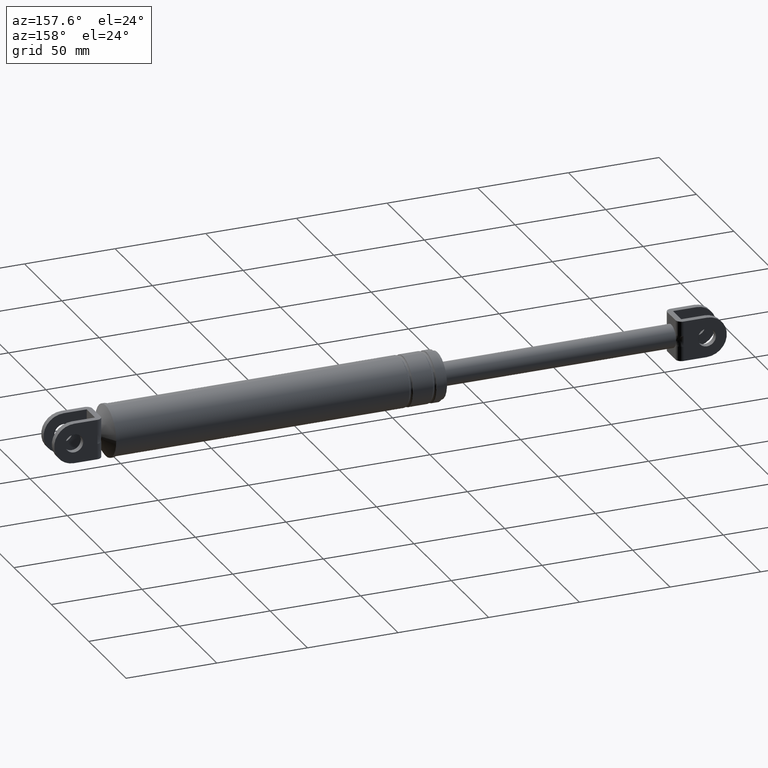
[diagram: clean part render]
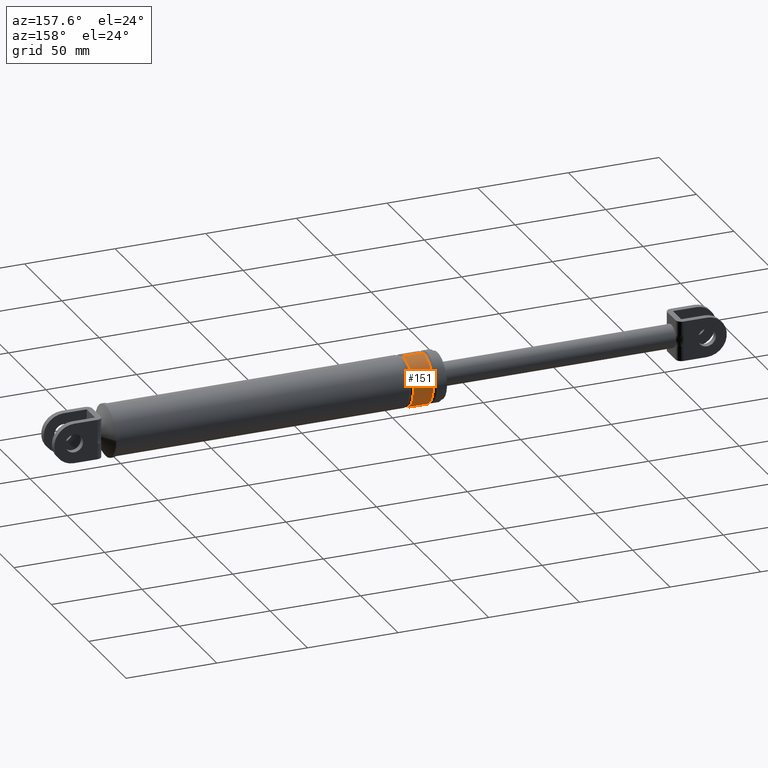
[diagram: same view with one face highlighted and labeled with its STEP entity id]
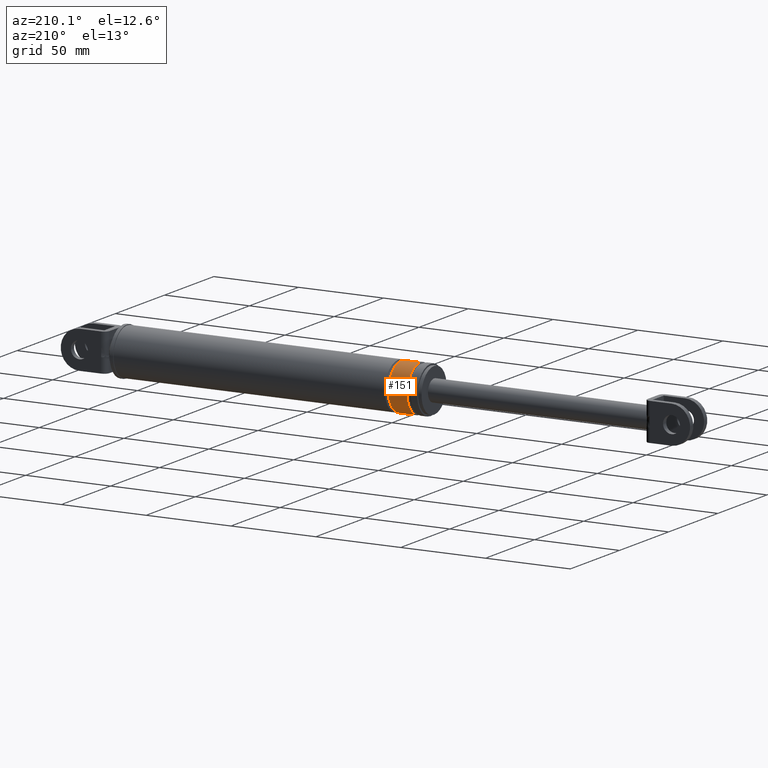
[diagram: same view with one face highlighted and labeled with its STEP entity id]
A machine part, auxiliary view. The second image highlights one B-rep face of the part: STEP entity #151.
A second angle (auxiliary view) of the same face is appended — the face is thin or edge-on in the first view.
In plain terms, the highlighted cylindrical surface (edge-blend (fillet) strip) has radius 13.7 mm, axis along (1, 0, 0).
Its self-contained STEP definition (entity closure, byte-faithful):
#151=ADVANCED_FACE('',(#573),#572,.T.);
#572=CYLINDRICAL_SURFACE('',#1218,1.37000000000E+001);
#573=FACE_OUTER_BOUND('',#1219,.T.);
#1215=CARTESIAN_POINT('',(0.00000000000E+000,0.00000000000E+000,1.77370805655E+002));
#1216=DIRECTION('',(1.00000000000E+000,-0.00000000000E+000,-0.00000000000E+000));
#1217=DIRECTION('',(0.00000000000E+000,1.22464679915E-016,1.00000000000E+000));
#1218=AXIS2_PLACEMENT_3D('',#1215,#1216,#1217);
#1219=EDGE_LOOP('',(#1584,#1585,#1586,#1587));
#1584=ORIENTED_EDGE('',*,*,#1786,.F.);
#1585=ORIENTED_EDGE('',*,*,#1806,.T.);
#1586=ORIENTED_EDGE('',*,*,#1792,.T.);
#1587=ORIENTED_EDGE('',*,*,#1807,.F.);
#1786=EDGE_CURVE('',#2364,#2365,#2366,.T.);
#1792=EDGE_CURVE('',#2405,#2398,#2406,.T.);
#1806=EDGE_CURVE('',#2364,#2405,#2494,.T.);
#1807=EDGE_CURVE('',#2365,#2398,#2500,.T.);
#2364=VERTEX_POINT('',#3234);
#2365=VERTEX_POINT('',#3235);
#2366=CIRCLE('',#3239,1.37000000000E+001);
#2398=VERTEX_POINT('',#3262);
#2405=VERTEX_POINT('',#3268);
#2406=CIRCLE('',#3272,1.37000000000E+001);
#2494=(BOUNDED_CURVE() B_SPLINE_CURVE(1,(#3320,#3321),.UNSPECIFIED.,.F.,.F.) B_SPLINE_CURVE_WITH_KNOTS((2,2),(8.33333343261E-002,9.16666667006E-001),.UNSPECIFIED.) CURVE() GEOMETRIC_REPRESENTATION_ITEM() RATIONAL_B_SPLINE_CURVE((1.00000000000E+000,1.00000000000E+000)) REPRESENTATION_ITEM('') );
#2500=(BOUNDED_CURVE() B_SPLINE_CURVE(1,(#3322,#3323),.UNSPECIFIED.,.F.,.F.) B_SPLINE_CURVE_WITH_KNOTS((2,2),(8.33333333333E-002,9.16666666667E-001),.UNSPECIFIED.) CURVE() GEOMETRIC_REPRESENTATION_ITEM() RATIONAL_B_SPLINE_CURVE((7.50000000000E-001,7.50000000000E-001)) REPRESENTATION_ITEM('') );
#3234=CARTESIAN_POINT('',(1.83225911423E+002,0.00000000000E+000,1.91070805655E+002));
#3235=CARTESIAN_POINT('',(1.83225911423E+002,0.00000000000E+000,1.63670805655E+002));
#3236=CARTESIAN_POINT('',(1.83225911423E+002,0.00000000000E+000,1.77370805655E+002));
#3237=DIRECTION('',(-1.00000000000E+000,0.00000000000E+000,0.00000000000E+000));
#3238=DIRECTION('',(0.00000000000E+000,-1.22460635382E-016,1.00000000000E+000));
#3239=AXIS2_PLACEMENT_3D('',#3236,#3237,#3238);
#3262=CARTESIAN_POINT('',(1.94225911423E+002,0.00000000000E+000,1.63670805655E+002));
#3268=CARTESIAN_POINT('',(1.94225911423E+002,0.00000000000E+000,1.91070805655E+002));
#3269=CARTESIAN_POINT('',(1.94225911423E+002,0.00000000000E+000,1.77370805655E+002));
#3270=DIRECTION('',(-1.00000000000E+000,0.00000000000E+000,0.00000000000E+000));
#3271=DIRECTION('',(0.00000000000E+000,-1.22460635382E-016,1.00000000000E+000));
#3272=AXIS2_PLACEMENT_3D('',#3269,#3270,#3271);
#3320=CARTESIAN_POINT('',(1.83225911436E+002,1.67776611483E-015,1.91070805655E+002));
#3321=CARTESIAN_POINT('',(1.94225911427E+002,1.67776611483E-015,1.91070805655E+002));
#3322=CARTESIAN_POINT('',(1.83225911423E+002,-5.92118946467E-016,1.63670805655E+002));
#3323=CARTESIAN_POINT('',(1.94225911423E+002,-5.92118946467E-016,1.63670805655E+002));